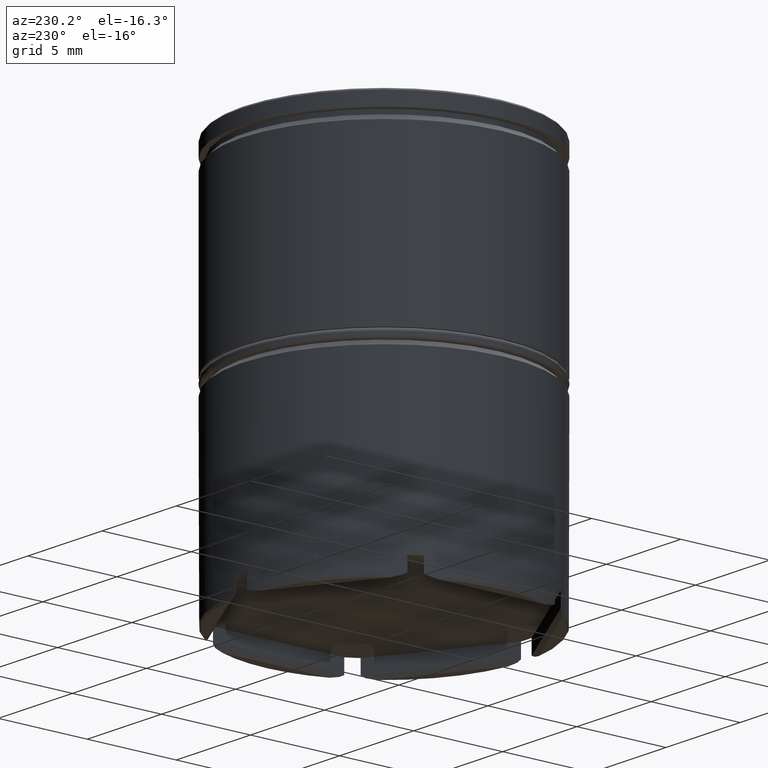
[diagram: clean part render]
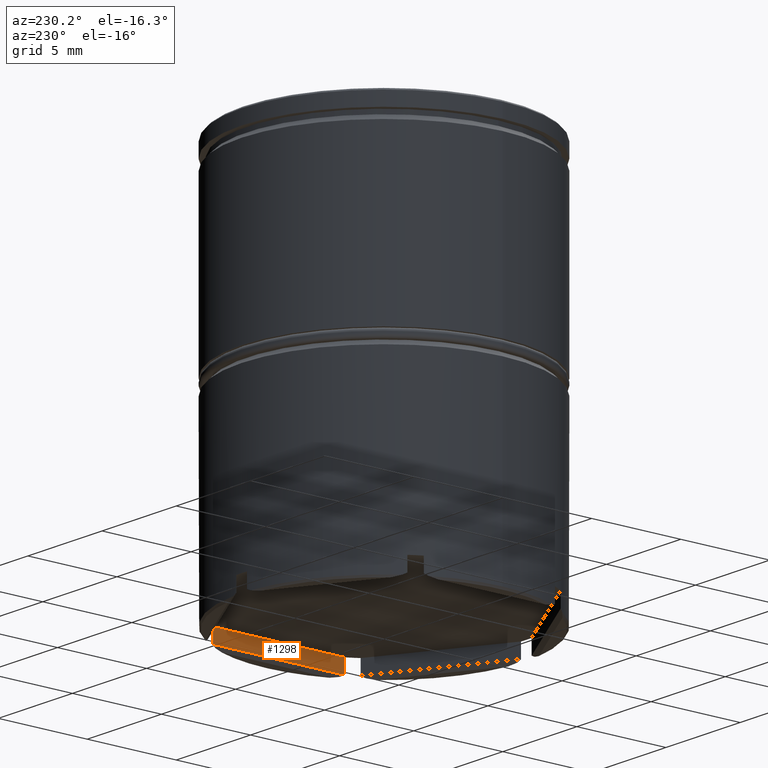
[diagram: same view with one face highlighted and labeled with its STEP entity id]
A machine part, auxiliary view. The second image highlights one B-rep face of the part: STEP entity #1298.
In plain terms, the highlighted planar face has unit normal (1, 0, -0).
Its self-contained STEP definition (entity closure, byte-faithful):
#20 = LINE ( 'NONE', #522, #817 ) ;
#55 = VECTOR ( 'NONE', #1283, 1000.000000000000000 ) ;
#78 = VECTOR ( 'NONE', #117, 1000.000000000000000 ) ;
#115 = EDGE_CURVE ( 'NONE', #881, #887, #1074, .T. ) ;
#117 = DIRECTION ( 'NONE',  ( 1.057968027279689044E-16, -1.000000000000000000, 0.000000000000000000 ) ) ;
#153 = CARTESIAN_POINT ( 'NONE',  ( 7.100000000000005862, 3.686461718233341678, 0.000000000000000000 ) ) ;
#185 = DIRECTION ( 'NONE',  ( -1.057968027279689044E-16, 1.000000000000000000, 0.000000000000000000 ) ) ;
#198 = EDGE_CURVE ( 'NONE', #759, #996, #1497, .T. ) ;
#209 = CARTESIAN_POINT ( 'NONE',  ( 7.100000000000006750, -3.464101615137754830, -21.80000000000000782 ) ) ;
#312 = FACE_OUTER_BOUND ( 'NONE', #1519, .T. ) ;
#379 = ORIENTED_EDGE ( 'NONE', *, *, #1164, .T. ) ;
#434 = CARTESIAN_POINT ( 'NONE',  ( 7.100000000000005862, 4.099186911246344600, -20.99999999999999645 ) ) ;
#522 = CARTESIAN_POINT ( 'NONE',  ( 7.100000000000005862, -3.686461718233339901, 0.000000000000000000 ) ) ;
#550 = VECTOR ( 'NONE', #685, 1000.000000000000000 ) ;
#560 = DIRECTION ( 'NONE',  ( 1.000000000000000000, 1.057968027279689044E-16, -0.000000000000000000 ) ) ;
#676 = EDGE_CURVE ( 'NONE', #887, #996, #20, .T. ) ;
#685 = DIRECTION ( 'NONE',  ( 1.057968027279689044E-16, -1.000000000000000000, 0.000000000000000000 ) ) ;
#703 = CARTESIAN_POINT ( 'NONE',  ( 7.100000000000005862, 3.686461718233341678, -21.80000000000000782 ) ) ;
#712 = CARTESIAN_POINT ( 'NONE',  ( 7.100000000000005862, -3.686461718233339901, -21.80000000000000782 ) ) ;
#749 = CARTESIAN_POINT ( 'NONE',  ( 7.100000000000005862, 4.099186911246344600, -20.99999999999999645 ) ) ;
#759 = VERTEX_POINT ( 'NONE', #799 ) ;
#797 = LINE ( 'NONE', #153, #55 ) ;
#799 = CARTESIAN_POINT ( 'NONE',  ( 7.100000000000005862, 3.686461718233341678, -20.99999999999999645 ) ) ;
#800 = ORIENTED_EDGE ( 'NONE', *, *, #676, .T. ) ;
#817 = VECTOR ( 'NONE', #1025, 1000.000000000000000 ) ;
#819 = PLANE ( 'NONE',  #1425 ) ;
#881 = VERTEX_POINT ( 'NONE', #703 ) ;
#887 = VERTEX_POINT ( 'NONE', #712 ) ;
#996 = VERTEX_POINT ( 'NONE', #1220 ) ;
#1025 = DIRECTION ( 'NONE',  ( -0.000000000000000000, -0.000000000000000000, 1.000000000000000000 ) ) ;
#1074 = LINE ( 'NONE', #209, #550 ) ;
#1164 = EDGE_CURVE ( 'NONE', #759, #881, #797, .T. ) ;
#1220 = CARTESIAN_POINT ( 'NONE',  ( 7.100000000000005862, -3.686461718233339901, -20.99999999999999645 ) ) ;
#1283 = DIRECTION ( 'NONE',  ( 0.000000000000000000, 0.000000000000000000, -1.000000000000000000 ) ) ;
#1298 = ADVANCED_FACE ( 'NONE', ( #312 ), #819, .F. ) ;
#1425 = AXIS2_PLACEMENT_3D ( 'NONE', #434, #560, #185 ) ;
#1432 = ORIENTED_EDGE ( 'NONE', *, *, #198, .F. ) ;
#1497 = LINE ( 'NONE', #749, #78 ) ;
#1519 = EDGE_LOOP ( 'NONE', ( #379, #1615, #800, #1432 ) ) ;
#1615 = ORIENTED_EDGE ( 'NONE', *, *, #115, .T. ) ;